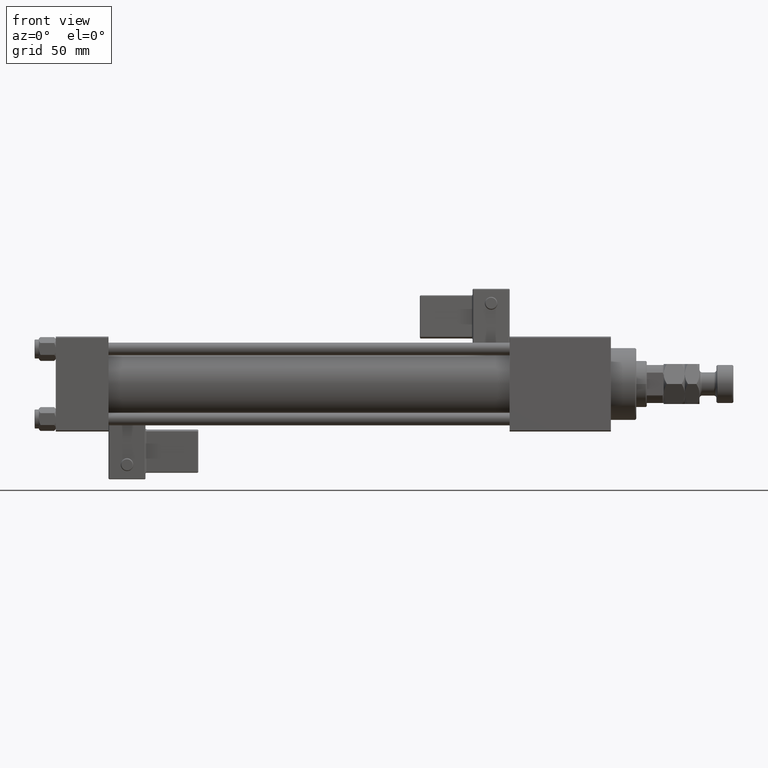
[diagram: clean part render]
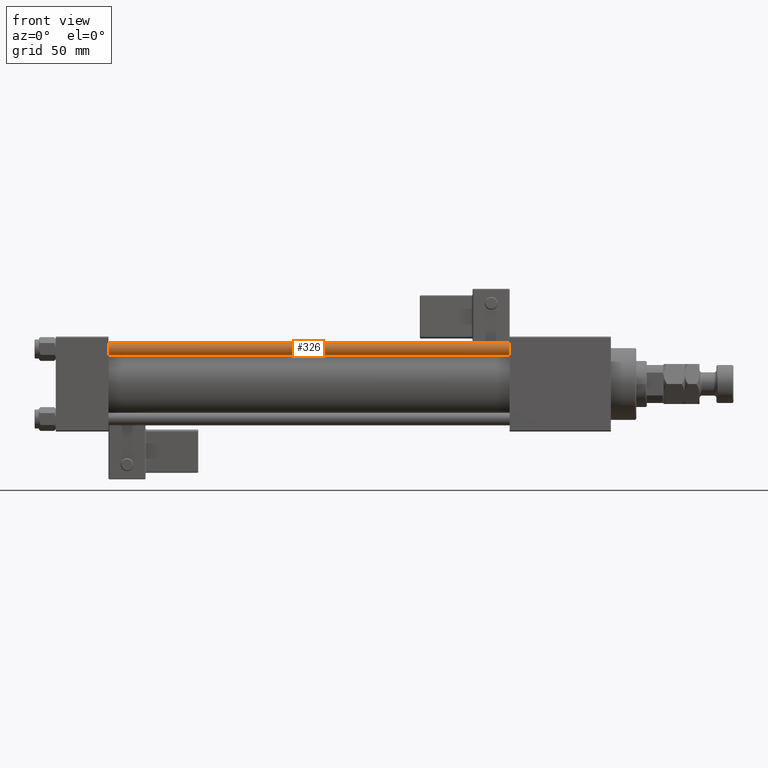
[diagram: same view with one face highlighted and labeled with its STEP entity id]
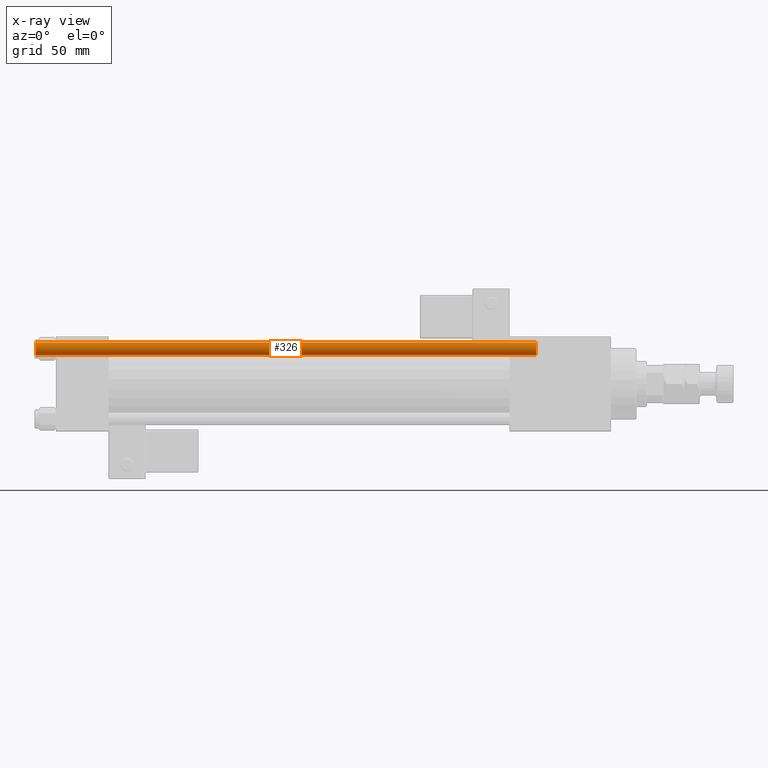
[diagram: x-ray of the same camera — body ghosted, the highlighted face saturated]
A machine part, front view. The second image highlights one B-rep face of the part: STEP entity #326.
The next image is the same camera in x-ray: the body ghosted, the highlighted face saturated — about 0% of this face is hidden behind the body in this view.
In plain terms, the highlighted cylindrical surface (edge-blend (fillet) strip) has radius 3 mm, axis along (1, 0, -0).
Its self-contained STEP definition (entity closure, byte-faithful):
#326 = ADVANCED_FACE ( 'NONE', ( #22219 ), #1376, .T. ) ;
#1376 = CYLINDRICAL_SURFACE ( 'NONE', #41250, 3.000000000000000444 ) ;
#1642 = EDGE_CURVE ( 'NONE', #49796, #41893, #30795, .T. ) ;
#4555 = CARTESIAN_POINT ( 'NONE',  ( -3.000000000000000444, 0.000000000000000000, 237.5000000000000284 ) ) ;
#6318 = DIRECTION ( 'NONE',  ( -1.000000000000000000, 0.000000000000000000, 0.000000000000000000 ) ) ;
#10652 = AXIS2_PLACEMENT_3D ( 'NONE', #18581, #35298, #31195 ) ;
#13312 = ORIENTED_EDGE ( 'NONE', *, *, #49447, .T. ) ;
#14779 = VECTOR ( 'NONE', #15743, 1000.000000000000000 ) ;
#15743 = DIRECTION ( 'NONE',  ( -0.000000000000000000, -0.000000000000000000, -1.000000000000000000 ) ) ;
#18050 = LINE ( 'NONE', #34764, #33439 ) ;
#18581 = CARTESIAN_POINT ( 'NONE',  ( 0.000000000000000000, 0.000000000000000000, 237.5000000000000284 ) ) ;
#21888 = CARTESIAN_POINT ( 'NONE',  ( 0.000000000000000000, 0.000000000000000000, 0.5000000000000281997 ) ) ;
#22159 = DIRECTION ( 'NONE',  ( -0.000000000000000000, -0.000000000000000000, 1.000000000000000000 ) ) ;
#22219 = FACE_OUTER_BOUND ( 'NONE', #46778, .T. ) ;
#23291 = EDGE_CURVE ( 'NONE', #41893, #52924, #48926, .T. ) ;
#27997 = CARTESIAN_POINT ( 'NONE',  ( -3.000000000000000444, 0.000000000000000000, 0.5000000000000281997 ) ) ;
#30795 = CIRCLE ( 'NONE', #10652, 3.000000000000000444 ) ;
#30941 = ORIENTED_EDGE ( 'NONE', *, *, #23291, .T. ) ;
#31195 = DIRECTION ( 'NONE',  ( 1.000000000000000000, 0.000000000000000000, 0.000000000000000000 ) ) ;
#32455 = CARTESIAN_POINT ( 'NONE',  ( 3.000000000000000444, 3.673940397442060361E-16, 238.0000000000000000 ) ) ;
#32758 = CARTESIAN_POINT ( 'NONE',  ( 3.000000000000000444, 3.673940397442060361E-16, 237.5000000000000284 ) ) ;
#33439 = VECTOR ( 'NONE', #50970, 1000.000000000000000 ) ;
#33604 = ORIENTED_EDGE ( 'NONE', *, *, #54136, .F. ) ;
#34764 = CARTESIAN_POINT ( 'NONE',  ( -3.000000000000000444, 0.000000000000000000, 238.0000000000000000 ) ) ;
#35298 = DIRECTION ( 'NONE',  ( 0.000000000000000000, 0.000000000000000000, -1.000000000000000000 ) ) ;
#35377 = DIRECTION ( 'NONE',  ( -0.000000000000000000, -0.000000000000000000, -1.000000000000000000 ) ) ;
#35552 = CARTESIAN_POINT ( 'NONE',  ( 3.000000000000000444, 3.673940397442060361E-16, 0.5000000000000281997 ) ) ;
#35651 = CARTESIAN_POINT ( 'NONE',  ( 0.000000000000000000, 0.000000000000000000, 238.0000000000000000 ) ) ;
#37064 = VERTEX_POINT ( 'NONE', #27997 ) ;
#39159 = AXIS2_PLACEMENT_3D ( 'NONE', #21888, #22159, #42987 ) ;
#40885 = CIRCLE ( 'NONE', #39159, 3.000000000000000444 ) ;
#41250 = AXIS2_PLACEMENT_3D ( 'NONE', #35651, #35377, #6318 ) ;
#41893 = VERTEX_POINT ( 'NONE', #32758 ) ;
#42987 = DIRECTION ( 'NONE',  ( 1.000000000000000000, 0.000000000000000000, 0.000000000000000000 ) ) ;
#46039 = ORIENTED_EDGE ( 'NONE', *, *, #1642, .T. ) ;
#46778 = EDGE_LOOP ( 'NONE', ( #46039, #30941, #13312, #33604 ) ) ;
#48926 = LINE ( 'NONE', #32455, #14779 ) ;
#49447 = EDGE_CURVE ( 'NONE', #52924, #37064, #40885, .T. ) ;
#49796 = VERTEX_POINT ( 'NONE', #4555 ) ;
#50970 = DIRECTION ( 'NONE',  ( -0.000000000000000000, -0.000000000000000000, -1.000000000000000000 ) ) ;
#52924 = VERTEX_POINT ( 'NONE', #35552 ) ;
#54136 = EDGE_CURVE ( 'NONE', #49796, #37064, #18050, .T. ) ;